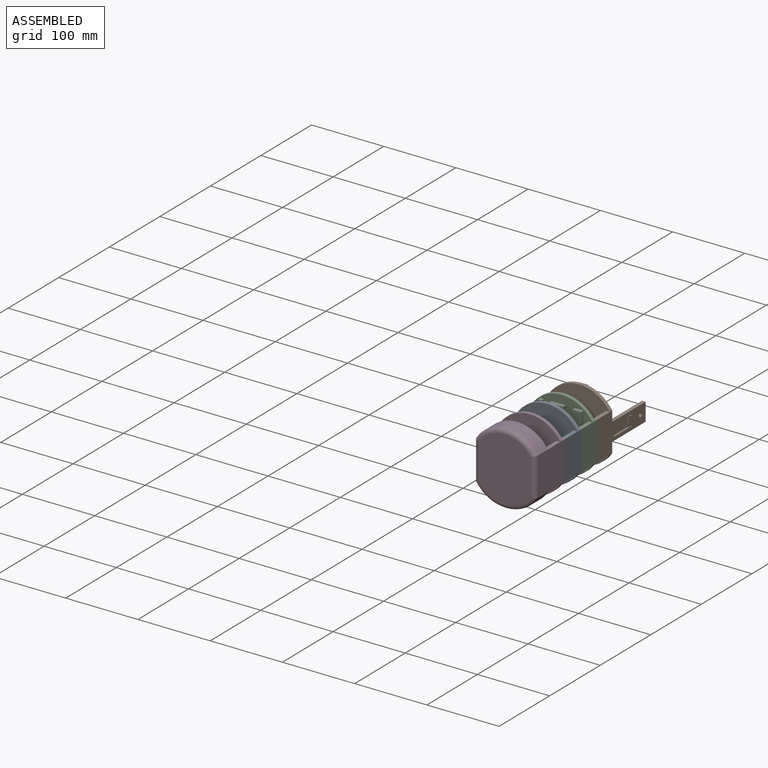
[diagram: assembled view]
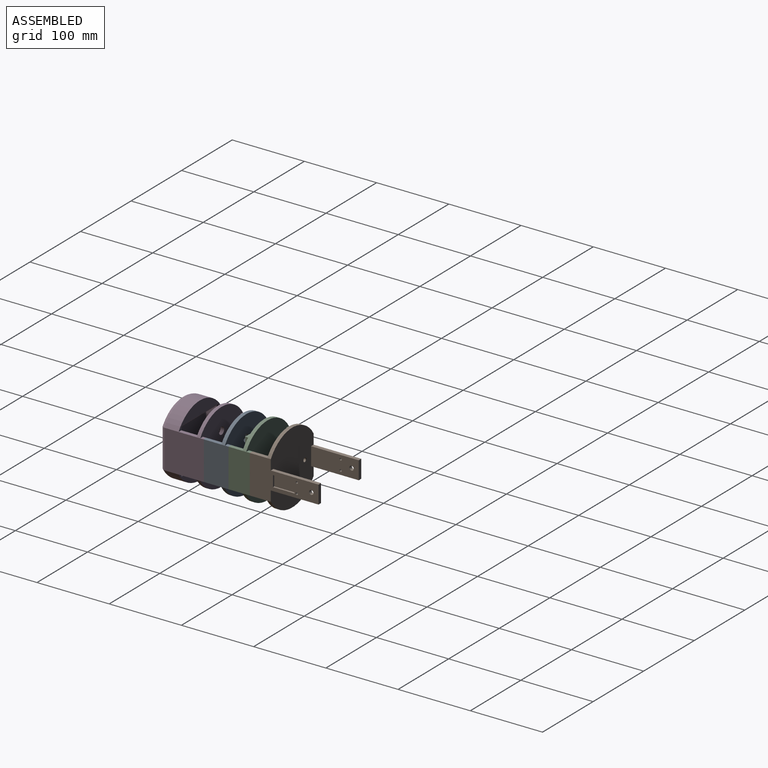
[diagram: assembled view, second angle]
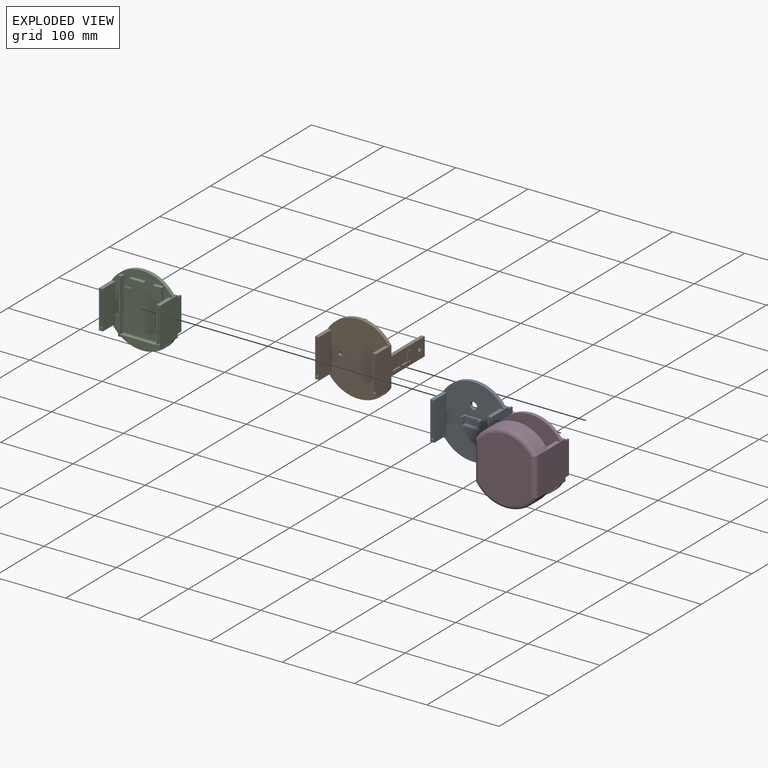
[diagram: exploded view]
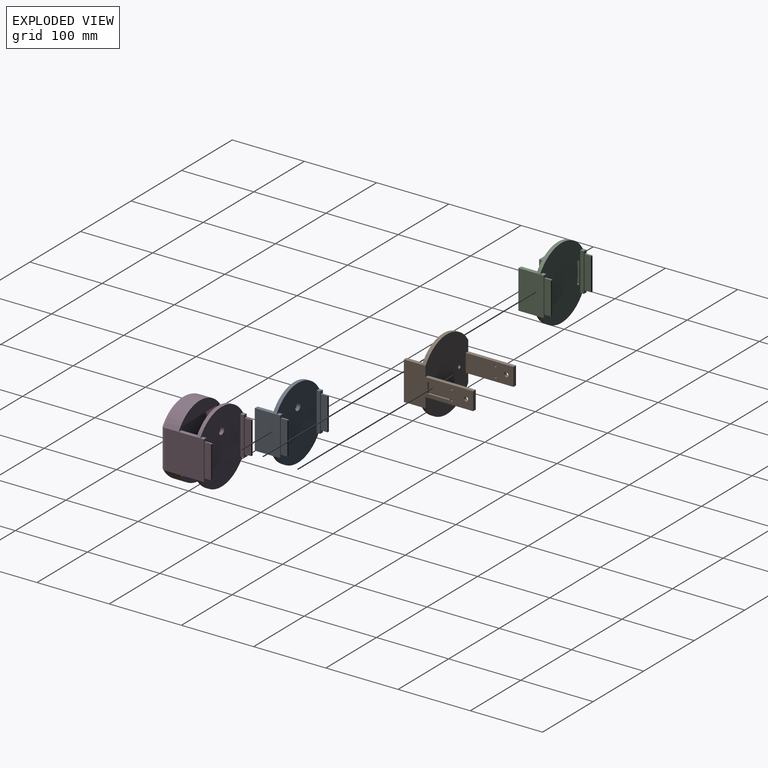
[diagram: exploded view, second angle]
ASSEMBLY  parts=4 mates=3
PART A: 76 faces, bbox 84.6x44.8x100 mm
  f0: plane 20x2.2mm, normal (0,0,1), area 44mm2, adj f67,f68,f70,f74
  f1: plane 9.5x1.8mm, normal (-1,0,0), area 17.1mm2, adj f3,f66,f69,f72
  f2: plane 9.5x1.8mm, normal (1,0,0), area 17.1mm2, adj f3,f66,f69,f72
  f3: plane 25x7.5mm, normal (0,0,1), area 86.5mm2, adj f1,f2,f9,f63,f65,f66,f67,f68
  f4: plane 100x84.62mm, normal (0,1,0), area 6654.5mm2, adj f10,f11,f36,f37,f38,f44,f45,f46
  f5: plane 53.28x5.31mm, normal (0,-1,0), area 120mm2, adj f7,f12,f13,f14,f32,f33,f34,f35
  f6: plane 53.28x5.31mm, normal (0,-1,0), area 120mm2, adj f8,f15,f16,f17,f28,f29,f30,f31
  f7: plane 53.28x35mm, normal (-1,0,0), area 1864.8mm2, adj f5,f10,f11,f12,f13,f44,f45,f47
  f8: plane 53.28x35mm, normal (1,0,0), area 1864.8mm2, adj f6,f10,f11,f15,f17,f36,f37,f39
  f9: plane 100x84.62mm, normal (0,-1,0), area 6354.4mm2, adj f3,f10,f11,f12,f13,f14,f15,f16
  f10: cylinder r=50mm len=84.62mm, axis (0,1,0), area 504.4mm2, adj f4,f7,f8,f9
  f11: cylinder r=50mm len=84.62mm, axis (0,1,0), area 504.4mm2, adj f4,f7,f8,f9
  f12: plane 25x5.31mm, normal (0,0,1), area 132.8mm2, adj f5,f7,f9,f14
  f13: plane 25x5.31mm, normal (0,0,-1), area 132.8mm2, adj f5,f7,f9,f14
  f14: plane 53.28x25mm, normal (1,0,0), area 1332mm2, adj f5,f9,f12,f13
  f15: plane 25x5.31mm, normal (0,0,1), area 132.8mm2, adj f6,f8,f9,f16
  f16: plane 53.28x25mm, normal (-1,0,0), area 1332mm2, adj f6,f9,f15,f17
  f17: plane 25x5.31mm, normal (0,0,-1), area 132.8mm2, adj f6,f8,f9,f16
  f18: plane 45.55x9.5mm, normal (-1,0,0), area 432.8mm2, adj f19,f21,f22,f28
  f19: plane 9.5x2.5mm, normal (0,0,-1), area 23.8mm2, adj f18,f20,f22,f29
  f20: plane 45.55x9.5mm, normal (1,0,0), area 432.8mm2, adj f19,f21,f22,f31
  f21: plane 9.5x2.5mm, normal (0,0,1), area 23.8mm2, adj f18,f20,f22,f30
  f22: plane 45.55x2.5mm, normal (0,-1,0), area 113.9mm2, adj f18,f19,f20,f21
  f23: plane 9.5x2.5mm, normal (0,0,-1), area 23.8mm2, adj f24,f26,f27,f32
  f24: plane 45.55x9.5mm, normal (1,0,0), area 432.8mm2, adj f23,f25,f27,f33
  f25: plane 9.5x2.5mm, normal (0,0,1), area 23.8mm2, adj f24,f26,f27,f35
  f26: plane 45.55x9.5mm, normal (-1,0,0), area 432.8mm2, adj f23,f25,f27,f34
  f27: plane 45.55x2.5mm, normal (0,-1,0), area 113.9mm2, adj f23,f24,f25,f26
  f28: cylinder r=0.5mm len=46.55mm, axis (0,0,-1), area 36.1mm2, adj f6,f18,f29,f30
  f29: cylinder r=0.5mm len=3.5mm, axis (1,0,0), area 2.2mm2, adj f6,f19,f28,f31
  f30: cylinder r=0.5mm len=3.5mm, axis (-1,0,0), area 2.2mm2, adj f6,f21,f28,f31
  f31: cylinder r=0.5mm len=46.55mm, axis (0,0,1), area 36.1mm2, adj f6,f20,f29,f30
  f32: cylinder r=0.5mm len=3.5mm, axis (1,0,0), area 2.2mm2, adj f5,f23,f33,f34
  f33: cylinder r=0.5mm len=46.55mm, axis (0,0,1), area 36.1mm2, adj f5,f24,f32,f35
  f34: cylinder r=0.5mm len=46.55mm, axis (0,0,-1), area 36.1mm2, adj f5,f26,f32,f35
  f35: cylinder r=0.5mm len=3.5mm, axis (-1,0,0), area 2.2mm2, adj f5,f25,f33,f34
  f36: plane 5.31x5mm, normal (0,0,1), area 26.6mm2, adj f4,f8,f38,f39
  f37: plane 5.31x5mm, normal (0,0,-1), area 26.6mm2, adj f4,f8,f38,f39
  f38: plane 53.28x5mm, normal (-1,0,0), area 266.4mm2, adj f4,f36,f37,f39
  f39: plane 53.28x5.31mm, normal (0,1,0), area 171.4mm2, adj f8,f36,f37,f38,f40,f41,f42,f43
  f40: plane 45.5x8.8mm, normal (1,0,0), area 400.4mm2, adj f39,f41,f43,f58
  f41: plane 8.8x2.45mm, normal (0,0,1), area 21.6mm2, adj f39,f40,f42,f60
  f42: plane 45.5x8.8mm, normal (-1,0,0), area 400.4mm2, adj f39,f41,f43,f61
  f43: plane 8.8x2.45mm, normal (0,0,-1), area 21.6mm2, adj f39,f40,f42,f59
  f44: plane 5.31x5mm, normal (0,0,-1), area 26.6mm2, adj f4,f7,f46,f47
  f45: plane 5.31x5mm, normal (0,0,1), area 26.6mm2, adj f4,f7,f46,f47
  f46: plane 53.28x5mm, normal (1,0,0), area 266.4mm2, adj f4,f44,f45,f47
  f47: plane 53.28x5.31mm, normal (0,1,0), area 171.4mm2, adj f7,f44,f45,f46,f48,f49,f50,f51
  f48: plane 45.5x8.8mm, normal (-1,0,0), area 400.4mm2, adj f47,f49,f51,f56
  f49: plane 8.8x2.45mm, normal (0,0,-1), area 21.6mm2, adj f47,f48,f50,f54
  f50: plane 45.5x8.8mm, normal (1,0,0), area 400.4mm2, adj f47,f49,f51,f55
  f51: plane 8.8x2.45mm, normal (0,0,1), area 21.6mm2, adj f47,f48,f50,f57
  f52: plane 43.5x0.45mm, normal (0,1,0), area 19.6mm2, adj f54,f55,f56,f57
  f53: plane 43.5x0.45mm, normal (0,1,0), area 19.6mm2, adj f58,f59,f60,f61
  f54: cylinder r=1mm len=2.45mm, axis (1,0,0), area 2.7mm2, adj f49,f52,f55,f56
  f55: cylinder r=1mm len=45.5mm, axis (0,0,1), area 70.3mm2, adj f50,f52,f54,f57
  f56: cylinder r=1mm len=45.5mm, axis (0,0,-1), area 70.3mm2, adj f48,f52,f54,f57
  f57: cylinder r=1mm len=2.45mm, axis (-1,0,0), area 2.7mm2, adj f51,f52,f55,f56
  f58: cylinder r=1mm len=45.5mm, axis (0,0,1), area 70.3mm2, adj f40,f53,f59,f60
  f59: cylinder r=1mm len=2.45mm, axis (1,0,0), area 2.7mm2, adj f43,f53,f58,f61
  f60: cylinder r=1mm len=2.45mm, axis (-1,0,0), area 2.7mm2, adj f41,f53,f58,f61
  f61: cylinder r=1mm len=45.5mm, axis (0,0,-1), area 70.3mm2, adj f42,f53,f59,f60
  f62: cylinder r=5mm len=10mm, axis (0,-1,0), area 157.1mm2, adj f4,f9
  f63: plane 12x7.5mm, normal (-1,0,0), area 90mm2, adj f3,f9,f64,f66
  f64: plane 25x7.5mm, normal (0,0,-1), area 187.5mm2, adj f9,f63,f65,f66
  f65: plane 12x7.5mm, normal (1,0,0), area 90mm2, adj f3,f9,f64,f66
  f66: plane 25x12mm, normal (0,-1,0), area 110mm2, adj f1,f2,f3,f63,f64,f65,f69
  f67: plane 9.5x2.2mm, normal (-1,0,0), area 20.9mm2, adj f0,f3,f70,f74
  f68: plane 9.5x2.2mm, normal (1,0,0), area 20.9mm2, adj f0,f3,f70,f74
  f69: plane 20x1.8mm, normal (0,0,1), area 36mm2, adj f1,f2,f66,f72
  f70: plane 20x9.5mm, normal (0,-1,0), area 190mm2, adj f0,f3,f67,f68
  f71: plane 11x1mm, normal (1,0,0), area 11mm2, adj f3,f72,f74,f75
  f72: plane 21x11mm, normal (0,1,0), area 41mm2, adj f1,f2,f3,f69,f71,f73,f75
  f73: plane 11x1mm, normal (-1,0,0), area 11mm2, adj f3,f72,f74,f75
  f74: plane 21x11mm, normal (0,-1,0), area 41mm2, adj f0,f3,f67,f68,f71,f73,f75
  f75: plane 21x1mm, normal (0,0,1), area 21mm2, adj f71,f72,f73,f74
PART B: 62 faces, bbox 84.6x96x100 mm
  f0: plane 53.28x5.31mm, normal (0,-1,0), area 120mm2, adj f2,f12,f13,f14,f54,f55,f56,f57
  f1: plane 53.28x5.31mm, normal (0,-1,0), area 120mm2, adj f4,f15,f16,f17,f50,f51,f52,f53
  f2: plane 96x53.28mm, normal (-1,0,0), area 2756mm2, adj f0,f7,f9,f11,f12,f13,f21,f22
  f3: plane 66x25mm, normal (1,0,0), area 1607.6mm2, adj f11,f21,f22,f23,f37,f38,f39
  f4: plane 96x53.28mm, normal (1,0,0), area 2756mm2, adj f1,f7,f9,f11,f15,f17,f18,f19
  f5: plane 66x25mm, normal (-1,0,0), area 1607.6mm2, adj f11,f18,f19,f20,f24,f30,f31
  f6: plane 100x84.62mm, normal (0,-1,0), area 6676.4mm2, adj f7,f9,f12,f13,f14,f15,f16,f17
  f7: cylinder r=50mm len=84.62mm, axis (0,1,0), area 504.4mm2, adj f2,f4,f6,f11
  f8: cylinder r=2.5mm len=5mm, axis (0,1,0), area 62.8mm2, adj f59,f61
  f9: cylinder r=50mm len=84.62mm, axis (0,1,0), area 504.4mm2, adj f2,f4,f6,f11
  f10: cylinder r=2.5mm len=5mm, axis (0,1,0), area 62.8mm2, adj f58,f60
  f11: plane 100x84.62mm, normal (0,1,0), area 6992.3mm2, adj f2,f3,f4,f5,f7,f9,f18,f19
  f12: plane 25x5.31mm, normal (0,0,1), area 132.8mm2, adj f0,f2,f6,f14
  f13: plane 25x5.31mm, normal (0,0,-1), area 132.8mm2, adj f0,f2,f6,f14
  f14: plane 53.28x25mm, normal (1,0,0), area 1332mm2, adj f0,f6,f12,f13
  f15: plane 25x5.31mm, normal (0,0,1), area 132.8mm2, adj f1,f4,f6,f16
  f16: plane 53.28x25mm, normal (-1,0,0), area 1332mm2, adj f1,f6,f15,f17
  f17: plane 25x5.31mm, normal (0,0,-1), area 132.8mm2, adj f1,f4,f6,f16
  f18: plane 66x5mm, normal (0,0,1), area 330mm2, adj f4,f5,f11,f20
  f19: plane 66x5mm, normal (0,0,-1), area 330mm2, adj f4,f5,f11,f20
  f20: plane 25x5mm, normal (0,1,0), area 125mm2, adj f4,f5,f18,f19
  f21: plane 66x5mm, normal (0,0,-1), area 330mm2, adj f2,f3,f11,f23
  f22: plane 66x5mm, normal (0,0,1), area 330mm2, adj f2,f3,f11,f23
  f23: plane 25x5mm, normal (0,1,0), area 125mm2, adj f2,f3,f21,f22
  f24: cylinder r=3mm len=6mm, axis (1,0,0), area 94.2mm2, adj f4,f5
  f25: plane 15x2.5mm, normal (0,-1,0), area 37.5mm2, adj f4,f26,f28,f29
  f26: plane 30x2.5mm, normal (0,0,-1), area 75mm2, adj f4,f25,f27,f29
  f27: plane 15x2.5mm, normal (0,1,0), area 37.5mm2, adj f4,f26,f28,f29
  f28: plane 30x2.5mm, normal (0,0,1), area 75mm2, adj f4,f25,f27,f29
  f29: plane 30x15mm, normal (1,0,0), area 450mm2, adj f25,f26,f27,f28
  f30: cylinder r=1.5mm len=5mm, axis (1,0,0), area 47.1mm2, adj f4,f5
  f31: cylinder r=1.5mm len=5mm, axis (1,0,0), area 47.1mm2, adj f4,f5
  f32: plane 15x2.5mm, normal (0,-1,0), area 37.5mm2, adj f2,f33,f35,f36
  f33: plane 30x2.5mm, normal (0,0,1), area 75mm2, adj f2,f32,f34,f36
  f34: plane 15x2.5mm, normal (0,1,0), area 37.5mm2, adj f2,f33,f35,f36
  f35: plane 30x2.5mm, normal (0,0,-1), area 75mm2, adj f2,f32,f34,f36
  f36: plane 30x15mm, normal (-1,0,0), area 450mm2, adj f32,f33,f34,f35
  f37: cylinder r=1.5mm len=5mm, axis (-1,0,0), area 47.1mm2, adj f2,f3
  f38: cylinder r=1.5mm len=5mm, axis (-1,0,0), area 47.1mm2, adj f2,f3
  f39: cylinder r=3mm len=6mm, axis (-1,0,0), area 94.2mm2, adj f2,f3
  f40: plane 45.55x9.5mm, normal (-1,0,0), area 432.8mm2, adj f41,f43,f44,f50
  f41: plane 9.5x2.5mm, normal (0,0,-1), area 23.8mm2, adj f40,f42,f44,f51
  f42: plane 45.55x9.5mm, normal (1,0,0), area 432.8mm2, adj f41,f43,f44,f53
  f43: plane 9.5x2.5mm, normal (0,0,1), area 23.8mm2, adj f40,f42,f44,f52
  f44: plane 45.55x2.5mm, normal (0,-1,0), area 113.9mm2, adj f40,f41,f42,f43
  f45: plane 9.5x2.5mm, normal (0,0,-1), area 23.8mm2, adj f46,f48,f49,f54
  f46: plane 45.55x9.5mm, normal (1,0,0), area 432.8mm2, adj f45,f47,f49,f55
  f47: plane 9.5x2.5mm, normal (0,0,1), area 23.8mm2, adj f46,f48,f49,f57
  f48: plane 45.55x9.5mm, normal (-1,0,0), area 432.8mm2, adj f45,f47,f49,f56
  f49: plane 45.55x2.5mm, normal (0,-1,0), area 113.9mm2, adj f45,f46,f47,f48
  f50: cylinder r=0.5mm len=46.55mm, axis (0,0,-1), area 36.1mm2, adj f1,f40,f51,f52
  f51: cylinder r=0.5mm len=3.5mm, axis (1,0,0), area 2.2mm2, adj f1,f41,f50,f53
  f52: cylinder r=0.5mm len=3.5mm, axis (-1,0,0), area 2.2mm2, adj f1,f43,f50,f53
  f53: cylinder r=0.5mm len=46.55mm, axis (0,0,1), area 36.1mm2, adj f1,f42,f51,f52
  f54: cylinder r=0.5mm len=3.5mm, axis (1,0,0), area 2.2mm2, adj f0,f45,f55,f56
  f55: cylinder r=0.5mm len=46.55mm, axis (0,0,1), area 36.1mm2, adj f0,f46,f54,f57
  f56: cylinder r=0.5mm len=46.55mm, axis (0,0,-1), area 36.1mm2, adj f0,f48,f54,f57
  f57: cylinder r=0.5mm len=3.5mm, axis (-1,0,0), area 2.2mm2, adj f0,f47,f55,f56
  f58: torus R=3mm, axis (0,-1,0), area 13.2mm2, adj f10,f11
  f59: torus R=3mm, axis (0,-1,0), area 13.2mm2, adj f8,f11
  f60: torus R=3mm, axis (0,-1,0), area 13.2mm2, adj f6,f10
  f61: torus R=3mm, axis (0,-1,0), area 13.2mm2, adj f6,f8
PART C: 92 faces, bbox 84.6x44.8x100 mm
  f0: plane 100x84.62mm, normal (0,-1,0), area 2094mm2, adj f6,f7,f8,f9,f10,f11,f12,f13
  f1: plane 100x84.62mm, normal (0,1,0), area 6493mm2, adj f6,f7,f50,f51,f52,f53,f54,f55
  f2: plane 53.28x5.31mm, normal (0,-1,0), area 120mm2, adj f4,f8,f9,f10,f28,f29,f30,f31
  f3: plane 53.28x5.31mm, normal (0,-1,0), area 120mm2, adj f5,f11,f12,f13,f24,f25,f26,f27
  f4: plane 53.28x35mm, normal (-1,0,0), area 1864.8mm2, adj f2,f6,f7,f8,f9,f74,f75,f77
  f5: plane 53.28x35mm, normal (1,0,0), area 1864.8mm2, adj f3,f6,f7,f11,f13,f66,f67,f69
  f6: cylinder r=50mm len=84.62mm, axis (0,1,0), area 504.4mm2, adj f0,f1,f4,f5
  f7: cylinder r=50mm len=84.62mm, axis (0,1,0), area 504.4mm2, adj f0,f1,f4,f5
  f8: plane 25x5.31mm, normal (0,0,1), area 132.8mm2, adj f0,f2,f4,f10
  f9: plane 25x5.31mm, normal (0,0,-1), area 132.8mm2, adj f0,f2,f4,f10
  f10: plane 53.28x25mm, normal (1,0,0), area 1332mm2, adj f0,f2,f8,f9
  f11: plane 25x5.31mm, normal (0,0,1), area 132.8mm2, adj f0,f3,f5,f12
  f12: plane 53.28x25mm, normal (-1,0,0), area 1332mm2, adj f0,f3,f11,f13
  f13: plane 25x5.31mm, normal (0,0,-1), area 132.8mm2, adj f0,f3,f5,f12
  f14: plane 45.55x9.5mm, normal (-1,0,0), area 432.8mm2, adj f15,f17,f18,f24
  f15: plane 9.5x2.5mm, normal (0,0,-1), area 23.8mm2, adj f14,f16,f18,f25
  f16: plane 45.55x9.5mm, normal (1,0,0), area 432.8mm2, adj f15,f17,f18,f27
  f17: plane 9.5x2.5mm, normal (0,0,1), area 23.8mm2, adj f14,f16,f18,f26
  f18: plane 45.55x2.5mm, normal (0,-1,0), area 113.9mm2, adj f14,f15,f16,f17
  f19: plane 9.5x2.5mm, normal (0,0,-1), area 23.8mm2, adj f20,f22,f23,f28
  f20: plane 45.55x9.5mm, normal (1,0,0), area 432.8mm2, adj f19,f21,f23,f29
  f21: plane 9.5x2.5mm, normal (0,0,1), area 23.8mm2, adj f20,f22,f23,f31
  f22: plane 45.55x9.5mm, normal (-1,0,0), area 432.8mm2, adj f19,f21,f23,f30
  f23: plane 45.55x2.5mm, normal (0,-1,0), area 113.9mm2, adj f19,f20,f21,f22
  f24: cylinder r=0.5mm len=46.55mm, axis (0,0,-1), area 36.1mm2, adj f3,f14,f25,f26
  f25: cylinder r=0.5mm len=3.5mm, axis (1,0,0), area 2.2mm2, adj f3,f15,f24,f27
  f26: cylinder r=0.5mm len=3.5mm, axis (-1,0,0), area 2.2mm2, adj f3,f17,f24,f27
  f27: cylinder r=0.5mm len=46.55mm, axis (0,0,1), area 36.1mm2, adj f3,f16,f25,f26
  f28: cylinder r=0.5mm len=3.5mm, axis (1,0,0), area 2.2mm2, adj f2,f19,f29,f30
  f29: cylinder r=0.5mm len=46.55mm, axis (0,0,1), area 36.1mm2, adj f2,f20,f28,f31
  f30: cylinder r=0.5mm len=46.55mm, axis (0,0,-1), area 36.1mm2, adj f2,f22,f28,f31
  f31: cylinder r=0.5mm len=3.5mm, axis (-1,0,0), area 2.2mm2, adj f2,f21,f29,f30
  f32: plane 70.5x5mm, normal (-1,0,0), area 352.5mm2, adj f0,f33,f43,f44
  f33: plane 54x5mm, normal (0,0,1), area 270mm2, adj f0,f32,f34,f44
  f34: plane 70.5x5mm, normal (1,0,0), area 352.5mm2, adj f0,f33,f35,f44
  f35: plane 5x2.5mm, normal (0,0,-1), area 12.5mm2, adj f0,f34,f36,f44
  f36: plane 5x3mm, normal (1,0,0), area 15mm2, adj f0,f35,f37,f44
  f37: plane 5.5x5mm, normal (0,0,1), area 27.5mm2, adj f0,f36,f38,f44
  f38: plane 76.5x5mm, normal (-1,0,0), area 382.5mm2, adj f0,f37,f39,f44
  f39: plane 60x5mm, normal (0,0,-1), area 300mm2, adj f0,f38,f40,f44
  f40: plane 76.5x5mm, normal (1,0,0), area 382.5mm2, adj f0,f39,f41,f44
  f41: plane 12x5mm, normal (0,0,1), area 60mm2, adj f0,f40,f42,f44
  f42: plane 5x3mm, normal (-1,0,0), area 15mm2, adj f0,f41,f43,f44
  f43: plane 9x5mm, normal (0,0,-1), area 45mm2, adj f0,f32,f42,f44
  f44: plane 76.5x60mm, normal (0,-1,0), area 655.5mm2, adj f32,f33,f34,f35,f36,f37,f38,f39
  f45: plane 20x5mm, normal (0,0,-1), area 100mm2, adj f0,f46,f48,f49
  f46: plane 5x3mm, normal (1,0,0), area 15mm2, adj f0,f45,f47,f49
  f47: plane 20x5mm, normal (0,0,1), area 100mm2, adj f0,f46,f48,f49
  f48: plane 5x3mm, normal (-1,0,0), area 15mm2, adj f0,f45,f47,f49
  f49: plane 20x3mm, normal (0,-1,0), area 60mm2, adj f45,f46,f47,f48
  f50: plane 5x4mm, normal (0,0,-1), area 20mm2, adj f0,f1,f51,f53
  f51: plane 30x5mm, normal (1,0,0), area 150mm2, adj f0,f1,f50,f52
  f52: plane 5x4mm, normal (0,0,1), area 20mm2, adj f0,f1,f51,f53
  f53: plane 30x5mm, normal (-1,0,0), area 150mm2, adj f0,f1,f50,f52
  f54: plane 5x4mm, normal (0,0,1), area 20mm2, adj f0,f1,f55,f57
  f55: plane 30x5mm, normal (-1,0,0), area 150mm2, adj f0,f1,f54,f56
  f56: plane 5x4mm, normal (0,0,-1), area 20mm2, adj f0,f1,f55,f57
  f57: plane 30x5mm, normal (1,0,0), area 150mm2, adj f0,f1,f54,f56
  f58: plane 69.5x2.5mm, normal (1,0,0), area 87.5mm2, adj f0,f59,f61,f62,f63,f65
  f59: plane 53x1mm, normal (0,0,1), area 53mm2, adj f0,f58,f60,f62
  f60: plane 69.5x1mm, normal (-1,0,0), area 69.5mm2, adj f0,f59,f61,f62
  f61: plane 53x2.5mm, normal (0,0,-1), area 71mm2, adj f0,f58,f60,f62,f64,f65
  f62: plane 69.5x53mm, normal (0,-1,0), area 3539.5mm2, adj f58,f59,f60,f61,f63,f64
  f63: plane 12x1.5mm, normal (0,0,1), area 18mm2, adj f58,f62,f64,f65
  f64: plane 12x1.5mm, normal (-1,0,0), area 18mm2, adj f61,f62,f63,f65
  f65: plane 12x12mm, normal (0,-1,0), area 144mm2, adj f58,f61,f63,f64
  f66: plane 5.31x5mm, normal (0,0,1), area 26.6mm2, adj f1,f5,f68,f69
  f67: plane 5.31x5mm, normal (0,0,-1), area 26.6mm2, adj f1,f5,f68,f69
  f68: plane 53.28x5mm, normal (-1,0,0), area 266.4mm2, adj f1,f66,f67,f69
  f69: plane 53.28x5.31mm, normal (0,1,0), area 171.4mm2, adj f5,f66,f67,f68,f70,f71,f72,f73
  f70: plane 45.5x8.8mm, normal (1,0,0), area 400.4mm2, adj f69,f71,f73,f88
  f71: plane 8.8x2.45mm, normal (0,0,1), area 21.6mm2, adj f69,f70,f72,f90
  f72: plane 45.5x8.8mm, normal (-1,0,0), area 400.4mm2, adj f69,f71,f73,f91
  f73: plane 8.8x2.45mm, normal (0,0,-1), area 21.6mm2, adj f69,f70,f72,f89
  f74: plane 5.31x5mm, normal (0,0,-1), area 26.6mm2, adj f1,f4,f76,f77
  f75: plane 5.31x5mm, normal (0,0,1), area 26.6mm2, adj f1,f4,f76,f77
  f76: plane 53.28x5mm, normal (1,0,0), area 266.4mm2, adj f1,f74,f75,f77
  f77: plane 53.28x5.31mm, normal (0,1,0), area 171.4mm2, adj f4,f74,f75,f76,f78,f79,f80,f81
  f78: plane 45.5x8.8mm, normal (-1,0,0), area 400.4mm2, adj f77,f79,f81,f86
  f79: plane 8.8x2.45mm, normal (0,0,-1), area 21.6mm2, adj f77,f78,f80,f84
  f80: plane 45.5x8.8mm, normal (1,0,0), area 400.4mm2, adj f77,f79,f81,f85
  f81: plane 8.8x2.45mm, normal (0,0,1), area 21.6mm2, adj f77,f78,f80,f87
  f82: plane 43.5x0.45mm, normal (0,1,0), area 19.6mm2, adj f84,f85,f86,f87
  f83: plane 43.5x0.45mm, normal (0,1,0), area 19.6mm2, adj f88,f89,f90,f91
  f84: cylinder r=1mm len=2.45mm, axis (1,0,0), area 2.7mm2, adj f79,f82,f85,f86
  f85: cylinder r=1mm len=45.5mm, axis (0,0,1), area 70.3mm2, adj f80,f82,f84,f87
  f86: cylinder r=1mm len=45.5mm, axis (0,0,-1), area 70.3mm2, adj f78,f82,f84,f87
  f87: cylinder r=1mm len=2.45mm, axis (-1,0,0), area 2.7mm2, adj f81,f82,f85,f86
  f88: cylinder r=1mm len=45.5mm, axis (0,0,1), area 70.3mm2, adj f70,f83,f89,f90
  f89: cylinder r=1mm len=2.45mm, axis (1,0,0), area 2.7mm2, adj f73,f83,f88,f91
  f90: cylinder r=1mm len=2.45mm, axis (-1,0,0), area 2.7mm2, adj f71,f83,f88,f91
  f91: cylinder r=1mm len=45.5mm, axis (0,0,-1), area 70.3mm2, adj f72,f83,f89,f90
PART D: 64 faces, bbox 91.6x69.8x108.2 mm
  f0: plane 70x60mm, normal (0,1,0), area 4196.9mm2, adj f44,f45,f46,f47,f52,f54,f56,f58
  f1: plane 100x84.62mm, normal (0,1,0), area 1997mm2, adj f8,f9,f10,f11,f12,f13,f41,f42
  f2: plane 100x84.62mm, normal (0,1,0), area 6654.5mm2, adj f6,f7,f14,f15,f16,f22,f23,f24
  f3: plane 54x53.28mm, normal (1,0,0), area 2877.1mm2, adj f6,f7,f11,f13,f14,f15,f17,f41
  f4: plane 54x53.28mm, normal (-1,0,0), area 2877.1mm2, adj f6,f7,f8,f9,f22,f23,f25,f41
  f5: plane 100x84.62mm, normal (0,-1,0), area 6654.4mm2, adj f6,f7,f8,f9,f10,f11,f12,f13
  f6: cylinder r=50mm len=84.62mm, axis (0,1,0), area 504.4mm2, adj f2,f3,f4,f5
  f7: cylinder r=50mm len=84.62mm, axis (0,1,0), area 504.4mm2, adj f2,f3,f4,f5
  f8: plane 25x5.31mm, normal (0,0,1), area 132.8mm2, adj f1,f4,f5,f10
  f9: plane 25x5.31mm, normal (0,0,-1), area 132.8mm2, adj f1,f4,f5,f10
  f10: plane 53.28x25mm, normal (1,0,0), area 1332mm2, adj f1,f5,f8,f9
  f11: plane 25x5.31mm, normal (0,0,1), area 132.8mm2, adj f1,f3,f5,f12
  f12: plane 53.28x25mm, normal (-1,0,0), area 1332mm2, adj f1,f5,f11,f13
  f13: plane 25x5.31mm, normal (0,0,-1), area 132.8mm2, adj f1,f3,f5,f12
  f14: plane 5.31x5mm, normal (0,0,1), area 26.6mm2, adj f2,f3,f16,f17
  f15: plane 5.31x5mm, normal (0,0,-1), area 26.6mm2, adj f2,f3,f16,f17
  f16: plane 53.28x5mm, normal (-1,0,0), area 266.4mm2, adj f2,f14,f15,f17
  f17: plane 53.28x5.31mm, normal (0,1,0), area 171.4mm2, adj f3,f14,f15,f16,f18,f19,f20,f21
  f18: plane 45.5x8.8mm, normal (1,0,0), area 400.4mm2, adj f17,f19,f21,f36
  f19: plane 8.8x2.45mm, normal (0,0,1), area 21.6mm2, adj f17,f18,f20,f38
  f20: plane 45.5x8.8mm, normal (-1,0,0), area 400.4mm2, adj f17,f19,f21,f39
  f21: plane 8.8x2.45mm, normal (0,0,-1), area 21.6mm2, adj f17,f18,f20,f37
  f22: plane 5.31x5mm, normal (0,0,-1), area 26.6mm2, adj f2,f4,f24,f25
  f23: plane 5.31x5mm, normal (0,0,1), area 26.6mm2, adj f2,f4,f24,f25
  f24: plane 53.28x5mm, normal (1,0,0), area 266.4mm2, adj f2,f22,f23,f25
  f25: plane 53.28x5.31mm, normal (0,1,0), area 171.4mm2, adj f4,f22,f23,f24,f26,f27,f28,f29
  f26: plane 45.5x8.8mm, normal (-1,0,0), area 400.4mm2, adj f25,f27,f29,f34
  f27: plane 8.8x2.45mm, normal (0,0,-1), area 21.6mm2, adj f25,f26,f28,f32
  f28: plane 45.5x8.8mm, normal (1,0,0), area 400.4mm2, adj f25,f27,f29,f33
  f29: plane 8.8x2.45mm, normal (0,0,1), area 21.6mm2, adj f25,f26,f28,f35
  f30: plane 43.5x0.45mm, normal (0,1,0), area 19.6mm2, adj f32,f33,f34,f35
  f31: plane 43.5x0.45mm, normal (0,1,0), area 19.6mm2, adj f36,f37,f38,f39
  f32: cylinder r=1mm len=2.45mm, axis (1,0,0), area 2.7mm2, adj f27,f30,f33,f34
  f33: cylinder r=1mm len=45.5mm, axis (0,0,1), area 70.3mm2, adj f28,f30,f32,f35
  f34: cylinder r=1mm len=45.5mm, axis (0,0,-1), area 70.3mm2, adj f26,f30,f32,f35
  f35: cylinder r=1mm len=2.45mm, axis (-1,0,0), area 2.7mm2, adj f29,f30,f33,f34
  f36: cylinder r=1mm len=45.5mm, axis (0,0,1), area 70.3mm2, adj f18,f31,f37,f38
  f37: cylinder r=1mm len=2.45mm, axis (1,0,0), area 2.7mm2, adj f21,f31,f36,f39
  f38: cylinder r=1mm len=2.45mm, axis (-1,0,0), area 2.7mm2, adj f19,f31,f36,f39
  f39: cylinder r=1mm len=45.5mm, axis (0,0,-1), area 70.3mm2, adj f20,f31,f37,f38
  f40: cylinder r=5mm len=10mm, axis (0,-1,0), area 157.1mm2, adj f2,f5
  f41: cylinder r=50mm len=84.62mm, axis (0,1,0), area 1916.9mm2, adj f1,f3,f4,f60
  f42: cylinder r=50mm len=84.62mm, axis (0,1,0), area 1916.9mm2, adj f1,f3,f4,f63
  f43: plane 88x72.62mm, normal (0,-1,0), area 5563.1mm2, adj f60,f61,f62,f63
  f44: plane 70x14mm, normal (0,0,-1), area 980mm2, adj f0,f45,f47,f48
  f45: plane 60x14mm, normal (-1,0,0), area 840mm2, adj f0,f44,f46,f49
  f46: plane 70x14mm, normal (0,0,1), area 980mm2, adj f0,f45,f47,f51
  f47: plane 60x14mm, normal (1,0,0), area 840mm2, adj f0,f44,f46,f50
  f48: cylinder r=2mm len=74mm, axis (1,0,0), area 224.5mm2, adj f1,f44,f49,f50
  f49: cylinder r=2mm len=64mm, axis (0,0,-1), area 193.1mm2, adj f1,f45,f48,f51
  f50: cylinder r=2mm len=64mm, axis (0,0,1), area 193.1mm2, adj f1,f47,f48,f51
  f51: cylinder r=2mm len=74mm, axis (-1,0,0), area 224.5mm2, adj f1,f46,f49,f50
  f52: cylinder r=0.5mm len=5mm, axis (0,1,0), area 15.7mm2, adj f0,f53
  f53: plane 1x1mm, normal (0,1,0), area 0.8mm2, adj f52
  f54: cylinder r=0.5mm len=5mm, axis (0,1,0), area 15.7mm2, adj f0,f55
  f55: plane 1x1mm, normal (0,1,0), area 0.8mm2, adj f54
  f56: cylinder r=0.5mm len=5mm, axis (0,1,0), area 15.7mm2, adj f0,f57
  f57: plane 1x1mm, normal (0,1,0), area 0.8mm2, adj f56
  f58: cylinder r=0.5mm len=5mm, axis (0,1,0), area 15.7mm2, adj f0,f59
  f59: plane 1x1mm, normal (0,1,0), area 0.8mm2, adj f58
  f60: torus R=44mm, axis (0,-1,0), area 897.7mm2, adj f41,f43,f61,f62
  f61: cylinder r=6mm len=53.28mm, axis (0,0,1), area 490mm2, adj f4,f43,f60,f63
  f62: cylinder r=6mm len=53.28mm, axis (0,0,-1), area 490mm2, adj f3,f43,f60,f63
  f63: torus R=44mm, axis (0,-1,0), area 897.7mm2, adj f42,f43,f61,f62
PLACE A t=(75.88,-37.09,-34.4)mm
PLACE B t=(75.83,26.46,-34.4)mm
PLACE C t=(75.86,-7.69,-34.4)mm
PLACE D t=(75.91,-71.24,-34.4)mm
MATE fastened C.f70 <-> B.f40  axis (1,0,0) through (116.74,1.71,-34.4)mm
MATE fastened A.f40 <-> C.f14  axis (1,0,0) through (116.76,-27.69,-34.4)mm
MATE fastened D.f18 <-> A.f18  axis (1,0,0) through (116.79,-61.84,-34.4)mm
